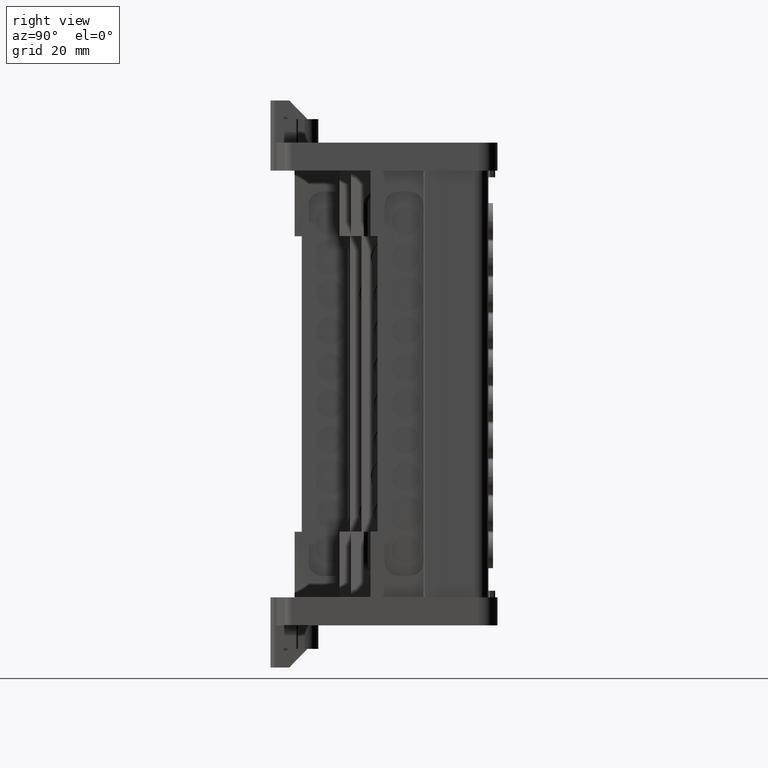
[diagram: clean part render]
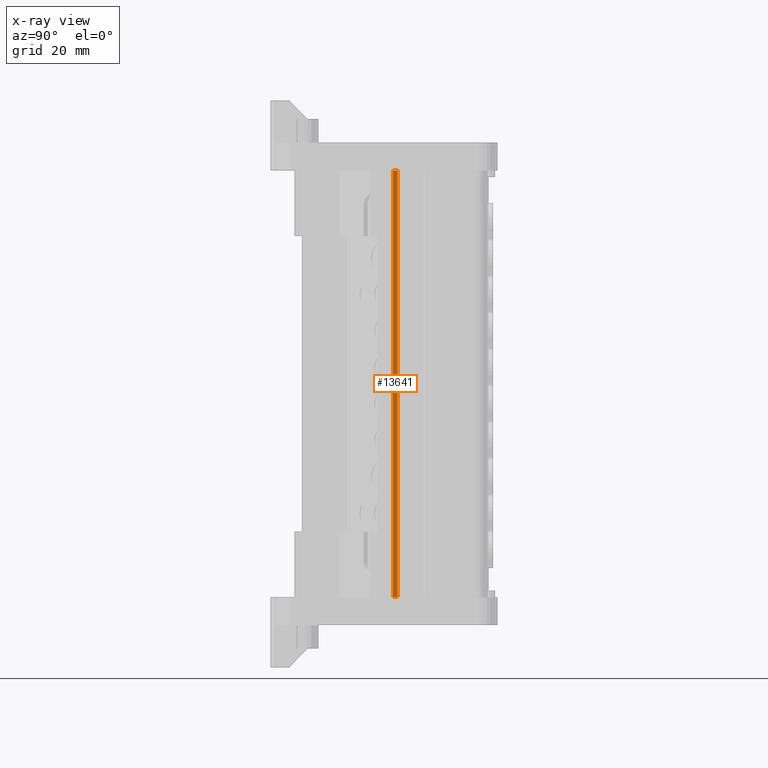
[diagram: x-ray — body ghosted, one internal face saturated and labeled with its STEP entity id]
A machine part, right view, then the same camera in x-ray: the body is ghosted and one INTERNAL B-rep face — a face not visible from any outside direction — is saturated and labeled: STEP entity #13641.
In plain terms, the highlighted planar face has unit normal (-0.9063, 0.4226, 0).
Its self-contained STEP definition (entity closure, byte-faithful):
#965 = CARTESIAN_POINT ( 'NONE',  ( 391.0173208126082000, -90.97788402702677500, 5.094608000012279100 ) ) ;
#1623 = DIRECTION ( 'NONE',  ( 0.4226182617408324500, 0.9063077870365878800, -0.0000000000000000000 ) ) ;
#1654 = CARTESIAN_POINT ( 'NONE',  ( 391.0173208126503300, -90.97788402704129900, 96.29224815084302200 ) ) ;
#1670 = LINE ( 'NONE', #1654, #109112 ) ;
#2453 = VECTOR ( 'NONE', #42325, 1000.000000000000000 ) ;
#2750 = VECTOR ( 'NONE', #44787, 1000.000000000000000 ) ;
#8394 = EDGE_CURVE ( 'NONE', #58950, #101852, #44769, .T. ) ;
#8478 = EDGE_CURVE ( 'NONE', #59035, #84178, #42364, .T. ) ;
#13063 = AXIS2_PLACEMENT_3D ( 'NONE', #18347, #18334, #18287 ) ;
#13641 = ADVANCED_FACE ( 'NONE', ( #18370 ), #18340, .T. ) ;
#14423 = VECTOR ( 'NONE', #21973, 1000.000000000000100 ) ;
#14766 = EDGE_CURVE ( 'NONE', #101852, #84178, #21972, .T. ) ;
#18287 = DIRECTION ( 'NONE',  ( -0.4226182617408324500, -0.9063077870365878800, 0.0000000000000000000 ) ) ;
#18334 = DIRECTION ( 'NONE',  ( -0.9063077870365879900, 0.4226182617408325000, 4.866362104851293600E-013 ) ) ;
#18340 = PLANE ( 'NONE',  #13063 ) ;
#18347 = CARTESIAN_POINT ( 'NONE',  ( 391.0173208126567500, -90.97788402704429700, 110.8363958779827700 ) ) ;
#18370 = FACE_OUTER_BOUND ( 'NONE', #23370, .T. ) ;
#21961 = CARTESIAN_POINT ( 'NONE',  ( 391.0173208126101400, -90.97788402702254000, 5.094608000012282600 ) ) ;
#21972 = LINE ( 'NONE', #21961, #14423 ) ;
#21973 = DIRECTION ( 'NONE',  ( -0.4226182617408324500, -0.9063077870365878800, 0.0000000000000000000 ) ) ;
#23370 = EDGE_LOOP ( 'NONE', ( #67963, #67914, #67937, #67969 ) ) ;
#27217 = EDGE_CURVE ( 'NONE', #59035, #58950, #1670, .T. ) ;
#42325 = DIRECTION ( 'NONE',  ( -4.738159064270373000E-013, 1.353778812889804000E-013, -1.000000000000000000 ) ) ;
#42364 = LINE ( 'NONE', #42371, #2453 ) ;
#42371 = CARTESIAN_POINT ( 'NONE',  ( 390.5657519962492800, -91.94627647891577700, 110.8363958779827700 ) ) ;
#44747 = CARTESIAN_POINT ( 'NONE',  ( 391.0173208126562900, -90.97788402704532000, 110.8363958779827700 ) ) ;
#44769 = LINE ( 'NONE', #44747, #2750 ) ;
#44787 = DIRECTION ( 'NONE',  ( -4.410421870166487500E-013, 2.056613493753712300E-013, -1.000000000000000000 ) ) ;
#58950 = VERTEX_POINT ( 'NONE', #74301 ) ;
#59035 = VERTEX_POINT ( 'NONE', #74305 ) ;
#67914 = ORIENTED_EDGE ( 'NONE', *, *, #8478, .F. ) ;
#67937 = ORIENTED_EDGE ( 'NONE', *, *, #27217, .T. ) ;
#67963 = ORIENTED_EDGE ( 'NONE', *, *, #14766, .T. ) ;
#67969 = ORIENTED_EDGE ( 'NONE', *, *, #8394, .T. ) ;
#74301 = CARTESIAN_POINT ( 'NONE',  ( 391.0173208126498100, -90.97788402704232200, 96.29224815084300800 ) ) ;
#74305 = CARTESIAN_POINT ( 'NONE',  ( 390.5657519962424500, -91.94627647891381600, 96.29224815084302200 ) ) ;
#84178 = VERTEX_POINT ( 'NONE', #106009 ) ;
#101852 = VERTEX_POINT ( 'NONE', #965 ) ;
#106009 = CARTESIAN_POINT ( 'NONE',  ( 390.5657519961992000, -91.94627647890146700, 5.094608000012192100 ) ) ;
#109112 = VECTOR ( 'NONE', #1623, 1000.000000000000100 ) ;